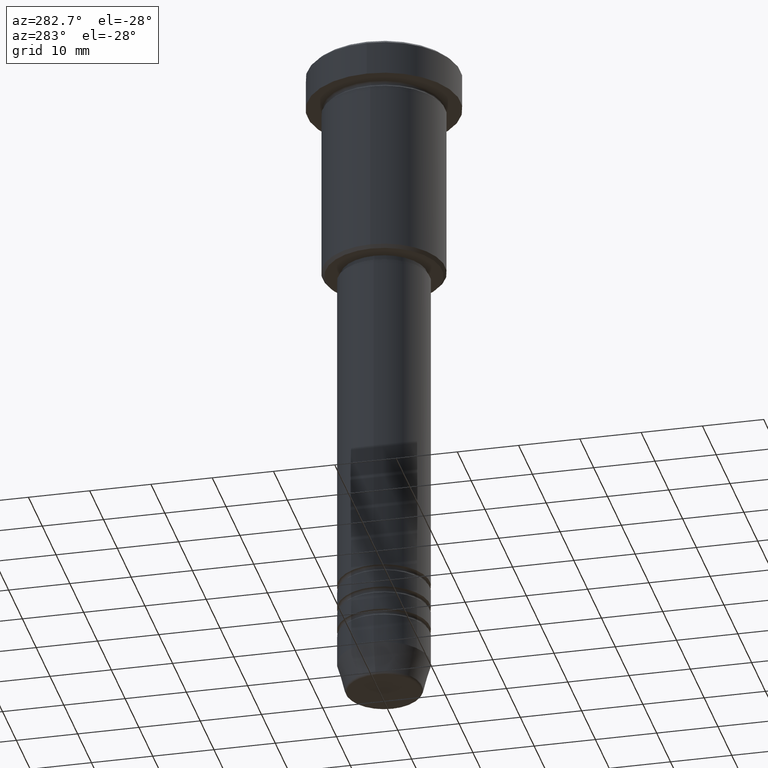
[diagram: clean part render]
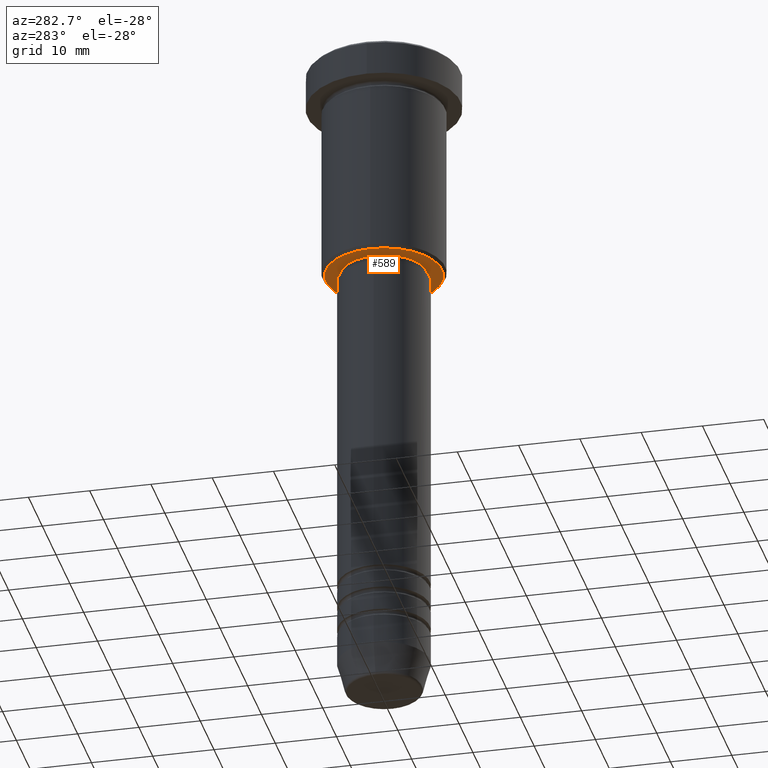
[diagram: same view with one face highlighted and labeled with its STEP entity id]
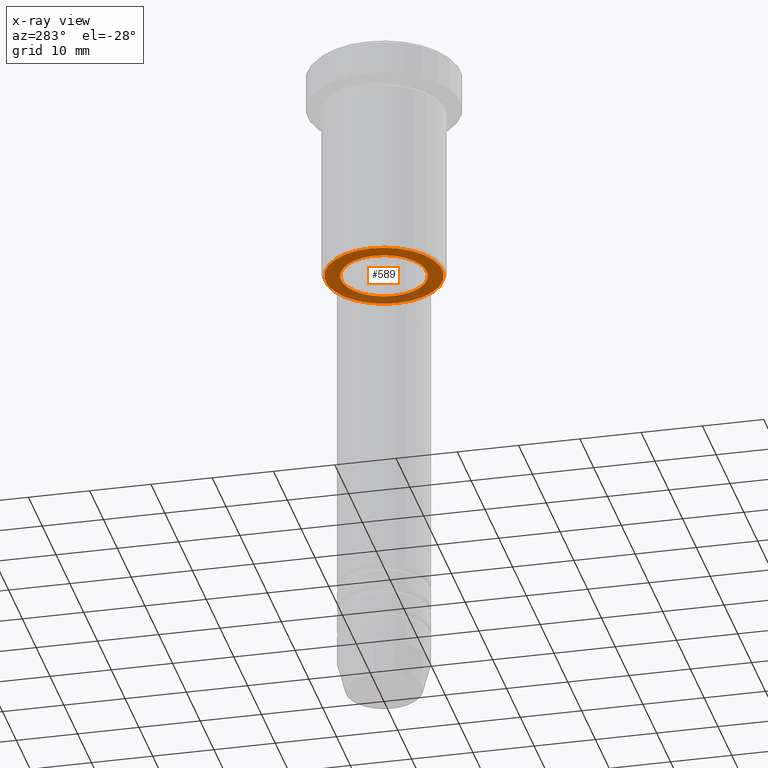
[diagram: x-ray of the same camera — body ghosted, the highlighted face saturated]
A machine part, auxiliary view. The second image highlights one B-rep face of the part: STEP entity #589.
The next image is the same camera in x-ray: the body ghosted, the highlighted face saturated — about 25% of this face is hidden behind the body in this view.
In plain terms, the highlighted planar face has unit normal (0, 0, -1).
Its self-contained STEP definition (entity closure, byte-faithful):
#18 = ORIENTED_EDGE ( 'NONE', *, *, #895, .T. ) ;
#34 = CARTESIAN_POINT ( 'NONE',  ( 9.499999999999980460, 0.000000000000000000, -36.00000000000000000 ) ) ;
#37 = DIRECTION ( 'NONE',  ( 1.000000000000000000, 0.000000000000000000, 0.000000000000000000 ) ) ;
#66 = DIRECTION ( 'NONE',  ( 0.000000000000000000, 0.000000000000000000, -1.000000000000000000 ) ) ;
#79 = CIRCLE ( 'NONE', #865, 9.499999999999980460 ) ;
#90 = ORIENTED_EDGE ( 'NONE', *, *, #1162, .T. ) ;
#113 = EDGE_LOOP ( 'NONE', ( #728, #18 ) ) ;
#119 = CIRCLE ( 'NONE', #609, 9.499999999999980460 ) ;
#130 = FACE_OUTER_BOUND ( 'NONE', #113, .T. ) ;
#136 = PLANE ( 'NONE',  #270 ) ;
#144 = DIRECTION ( 'NONE',  ( -1.000000000000000000, 0.000000000000000000, 0.000000000000000000 ) ) ;
#231 = EDGE_CURVE ( 'NONE', #433, #813, #79, .T. ) ;
#238 = EDGE_CURVE ( 'NONE', #714, #264, #1037, .T. ) ;
#247 = CARTESIAN_POINT ( 'NONE',  ( -9.499999999999980460, 1.194030629168668286E-15, -36.00000000000000000 ) ) ;
#252 = ORIENTED_EDGE ( 'NONE', *, *, #238, .T. ) ;
#264 = VERTEX_POINT ( 'NONE', #921 ) ;
#270 = AXIS2_PLACEMENT_3D ( 'NONE', #482, #66, #510 ) ;
#276 = CARTESIAN_POINT ( 'NONE',  ( 0.000000000000000000, 0.000000000000000000, -36.00000000000000000 ) ) ;
#290 = CIRCLE ( 'NONE', #489, 6.999999999999999112 ) ;
#308 = EDGE_LOOP ( 'NONE', ( #90, #252 ) ) ;
#433 = VERTEX_POINT ( 'NONE', #34 ) ;
#446 = CARTESIAN_POINT ( 'NONE',  ( -6.999999999999999112, 8.572527594031472204E-16, -36.00000000000000000 ) ) ;
#482 = CARTESIAN_POINT ( 'NONE',  ( 0.000000000000000000, 10.00000000000000000, -36.00000000000000000 ) ) ;
#489 = AXIS2_PLACEMENT_3D ( 'NONE', #667, #1042, #37 ) ;
#510 = DIRECTION ( 'NONE',  ( -1.000000000000000000, 0.000000000000000000, -0.000000000000000000 ) ) ;
#519 = DIRECTION ( 'NONE',  ( 1.000000000000000000, 0.000000000000000000, 0.000000000000000000 ) ) ;
#589 = ADVANCED_FACE ( 'NONE', ( #130, #692 ), #136, .T. ) ;
#609 = AXIS2_PLACEMENT_3D ( 'NONE', #987, #891, #144 ) ;
#667 = CARTESIAN_POINT ( 'NONE',  ( 0.000000000000000000, 0.000000000000000000, -36.00000000000000000 ) ) ;
#692 = FACE_BOUND ( 'NONE', #308, .T. ) ;
#714 = VERTEX_POINT ( 'NONE', #446 ) ;
#728 = ORIENTED_EDGE ( 'NONE', *, *, #231, .T. ) ;
#810 = DIRECTION ( 'NONE',  ( -0.000000000000000000, -0.000000000000000000, 1.000000000000000000 ) ) ;
#813 = VERTEX_POINT ( 'NONE', #247 ) ;
#822 = CARTESIAN_POINT ( 'NONE',  ( 0.000000000000000000, 0.000000000000000000, -36.00000000000000000 ) ) ;
#865 = AXIS2_PLACEMENT_3D ( 'NONE', #276, #1085, #903 ) ;
#891 = DIRECTION ( 'NONE',  ( 0.000000000000000000, 0.000000000000000000, -1.000000000000000000 ) ) ;
#895 = EDGE_CURVE ( 'NONE', #813, #433, #119, .T. ) ;
#903 = DIRECTION ( 'NONE',  ( -1.000000000000000000, 0.000000000000000000, 0.000000000000000000 ) ) ;
#921 = CARTESIAN_POINT ( 'NONE',  ( 6.999999999999999112, 0.000000000000000000, -36.00000000000000000 ) ) ;
#962 = AXIS2_PLACEMENT_3D ( 'NONE', #822, #810, #519 ) ;
#987 = CARTESIAN_POINT ( 'NONE',  ( 0.000000000000000000, 0.000000000000000000, -36.00000000000000000 ) ) ;
#1037 = CIRCLE ( 'NONE', #962, 6.999999999999999112 ) ;
#1042 = DIRECTION ( 'NONE',  ( -0.000000000000000000, -0.000000000000000000, 1.000000000000000000 ) ) ;
#1085 = DIRECTION ( 'NONE',  ( 0.000000000000000000, 0.000000000000000000, -1.000000000000000000 ) ) ;
#1162 = EDGE_CURVE ( 'NONE', #264, #714, #290, .T. ) ;